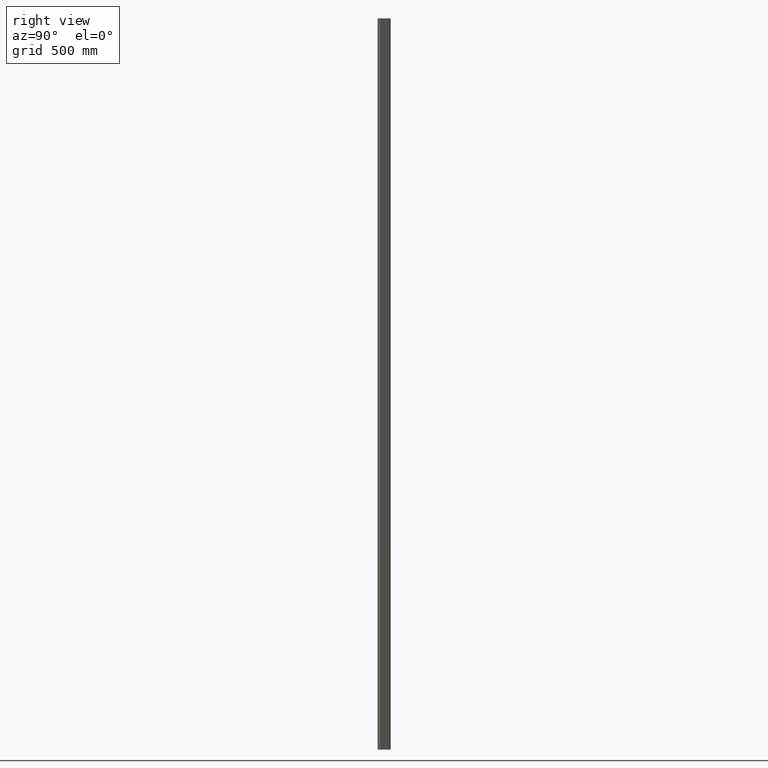
[diagram: clean part render]
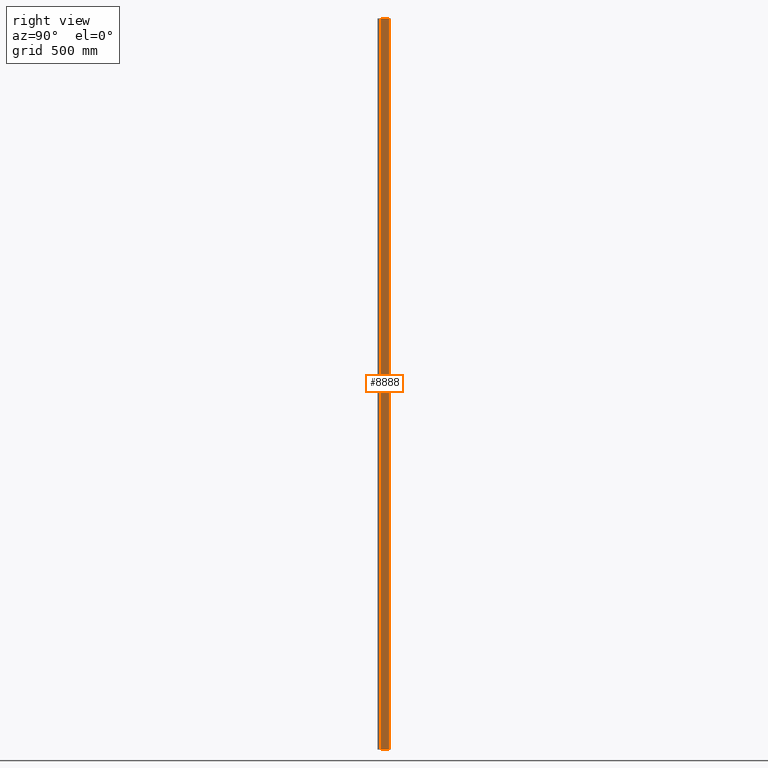
[diagram: same view with one face highlighted and labeled with its STEP entity id]
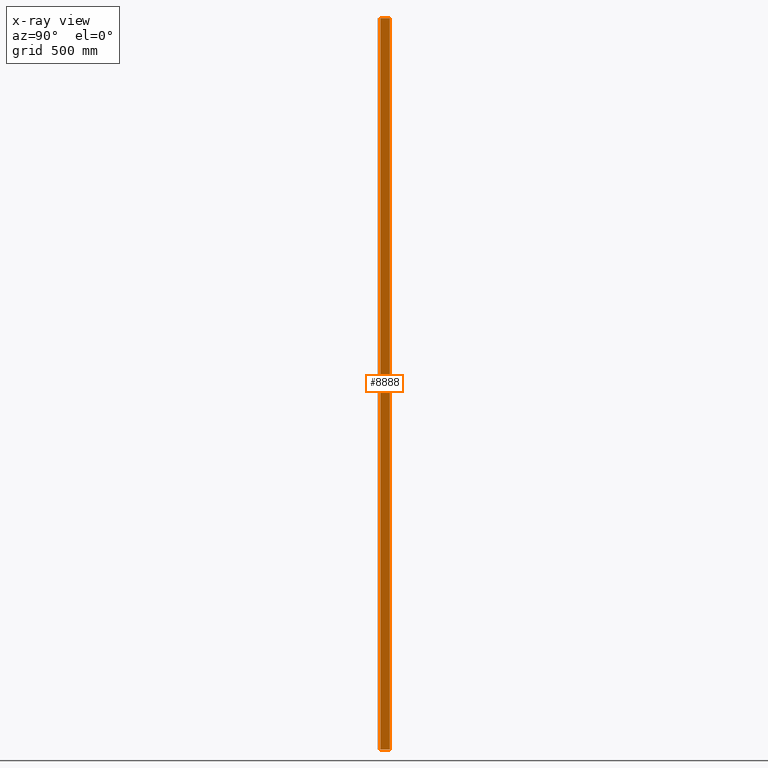
[diagram: x-ray of the same camera — body ghosted, the highlighted face saturated]
A machine part, right view. The second image highlights one B-rep face of the part: STEP entity #8888.
The next image is the same camera in x-ray: the body ghosted, the highlighted face saturated — about 0% of this face is hidden behind the body in this view.
In plain terms, the highlighted planar face has unit normal (-1, 0, 0).
Its self-contained STEP definition (entity closure, byte-faithful):
#227 = CARTESIAN_POINT ( 'NONE',  ( 21.00000000000000000, 10.96601461306008574, -1500.000000000000000 ) ) ;
#698 = LINE ( 'NONE', #2225, #6495 ) ;
#936 = ORIENTED_EDGE ( 'NONE', *, *, #3458, .F. ) ;
#953 = CARTESIAN_POINT ( 'NONE',  ( 20.99999999999999645, 49.99999999999998579, -1500.000000000000000 ) ) ;
#974 = FACE_OUTER_BOUND ( 'NONE', #3182, .T. ) ;
#2148 = EDGE_CURVE ( 'NONE', #4127, #10470, #6610, .T. ) ;
#2225 = CARTESIAN_POINT ( 'NONE',  ( 20.99999999999999645, 49.99999999999998579, 1500.000000000000000 ) ) ;
#2451 = ORIENTED_EDGE ( 'NONE', *, *, #5931, .F. ) ;
#3020 = LINE ( 'NONE', #3533, #6953 ) ;
#3182 = EDGE_LOOP ( 'NONE', ( #6780, #2451, #936, #13422 ) ) ;
#3458 = EDGE_CURVE ( 'NONE', #4127, #5009, #3020, .T. ) ;
#3533 = CARTESIAN_POINT ( 'NONE',  ( 20.99999999999999645, 49.99999999999998579, 1500.000000000000000 ) ) ;
#3566 = CARTESIAN_POINT ( 'NONE',  ( 20.99999999999999645, 49.99999999999998579, 1500.000000000000000 ) ) ;
#4127 = VERTEX_POINT ( 'NONE', #9330 ) ;
#4300 = DIRECTION ( 'NONE',  ( -0.000000000000000000, 1.000000000000000000, -0.000000000000000000 ) ) ;
#5009 = VERTEX_POINT ( 'NONE', #9916 ) ;
#5931 = EDGE_CURVE ( 'NONE', #5009, #12149, #698, .T. ) ;
#6495 = VECTOR ( 'NONE', #9761, 1000.000000000000000 ) ;
#6610 = LINE ( 'NONE', #10355, #9180 ) ;
#6780 = ORIENTED_EDGE ( 'NONE', *, *, #12592, .T. ) ;
#6953 = VECTOR ( 'NONE', #9015, 1000.000000000000000 ) ;
#7755 = LINE ( 'NONE', #953, #13727 ) ;
#7943 = PLANE ( 'NONE',  #8769 ) ;
#8769 = AXIS2_PLACEMENT_3D ( 'NONE', #3566, #12373, #13314 ) ;
#8888 = ADVANCED_FACE ( 'NONE', ( #974 ), #7943, .F. ) ;
#9015 = DIRECTION ( 'NONE',  ( -0.000000000000000000, 1.000000000000000000, -0.000000000000000000 ) ) ;
#9180 = VECTOR ( 'NONE', #10314, 1000.000000000000000 ) ;
#9330 = CARTESIAN_POINT ( 'NONE',  ( 21.00000000000000000, 10.96601461306008574, 1500.000000000000000 ) ) ;
#9478 = CARTESIAN_POINT ( 'NONE',  ( 20.99999999999999645, 49.99999999999998579, -1500.000000000000000 ) ) ;
#9761 = DIRECTION ( 'NONE',  ( -0.000000000000000000, -0.000000000000000000, -1.000000000000000000 ) ) ;
#9916 = CARTESIAN_POINT ( 'NONE',  ( 20.99999999999999645, 49.99999999999998579, 1500.000000000000000 ) ) ;
#10314 = DIRECTION ( 'NONE',  ( -0.000000000000000000, -0.000000000000000000, -1.000000000000000000 ) ) ;
#10355 = CARTESIAN_POINT ( 'NONE',  ( 21.00000000000000000, 10.96601461306008574, 1500.000000000000000 ) ) ;
#10470 = VERTEX_POINT ( 'NONE', #227 ) ;
#12149 = VERTEX_POINT ( 'NONE', #9478 ) ;
#12373 = DIRECTION ( 'NONE',  ( -1.000000000000000000, 0.000000000000000000, 0.000000000000000000 ) ) ;
#12592 = EDGE_CURVE ( 'NONE', #10470, #12149, #7755, .T. ) ;
#13314 = DIRECTION ( 'NONE',  ( 0.000000000000000000, 0.000000000000000000, 1.000000000000000000 ) ) ;
#13422 = ORIENTED_EDGE ( 'NONE', *, *, #2148, .T. ) ;
#13727 = VECTOR ( 'NONE', #4300, 1000.000000000000000 ) ;